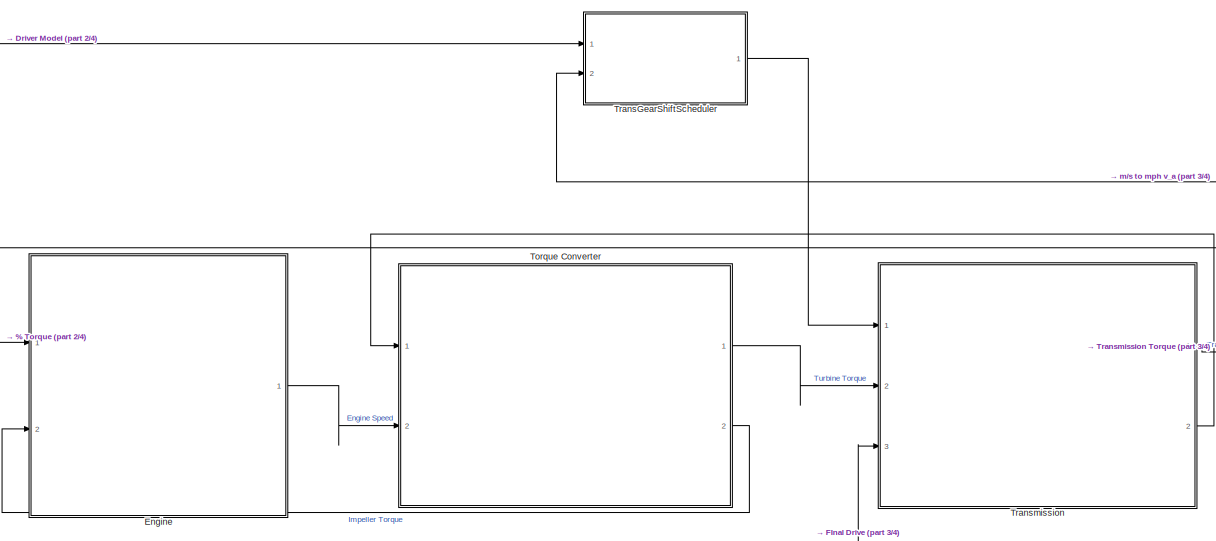
[diagram: root canvas - part 1/4, center side, full height]
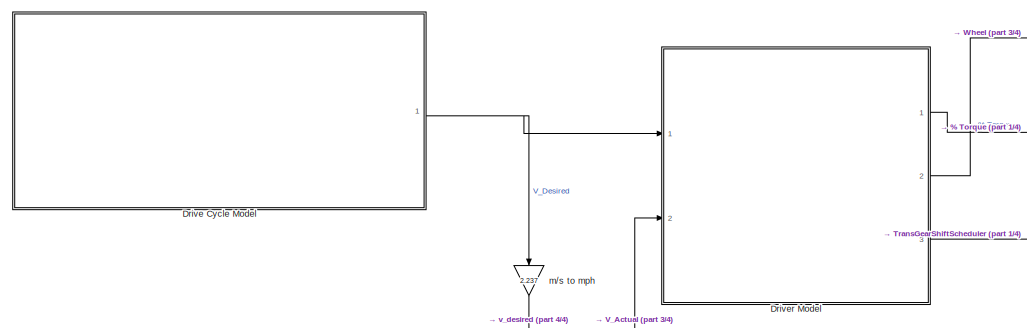
[diagram: root canvas - part 2/4, middle left region]
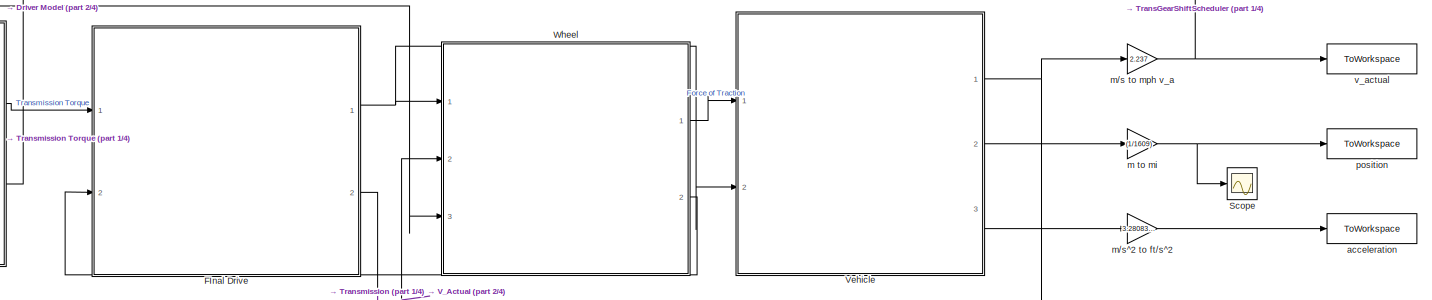
[diagram: root canvas - part 3/4, middle right region]
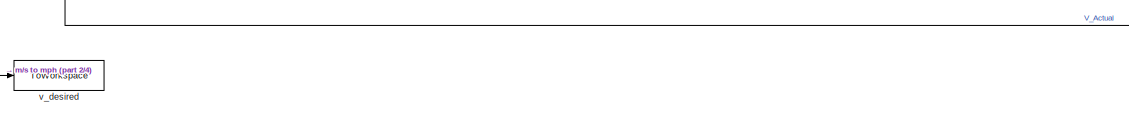
[diagram: root canvas - part 4/4, bottom left region]
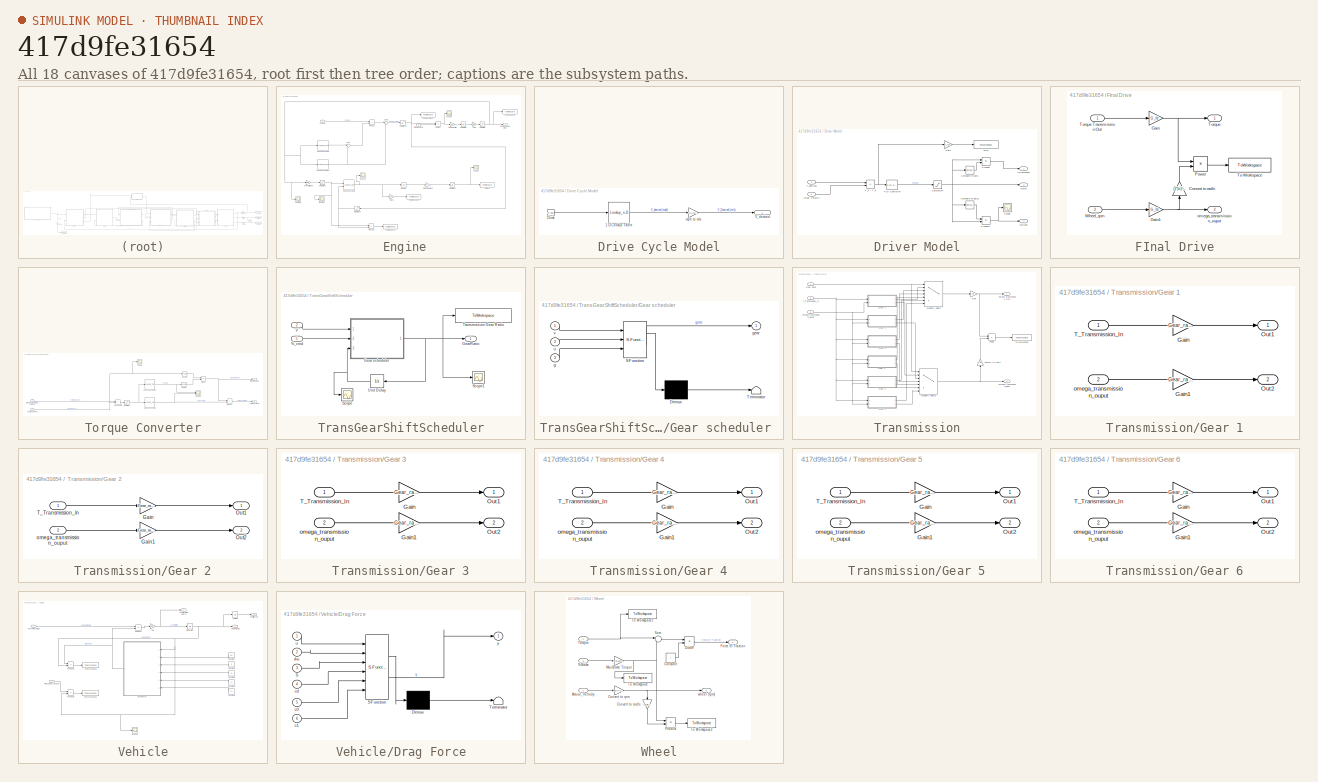
[diagram: thumbnail index - all 18 canvases of the model, root first then tree order]
MODEL slx_417d9fe31654
KIND model
CONFIG AbsTol = auto
CONFIG EnableMultiTasking = off
CONFIG FixedStep = auto
CONFIG MaxStep = auto
CONFIG MinStep = auto
CONFIG RelTol = auto
CONFIG SampleTimeConstraint = Unconstrained
CONFIG SolverName = VariableStepAuto
CONFIG StartTime = 0.0
CONFIG StopTime = 1370
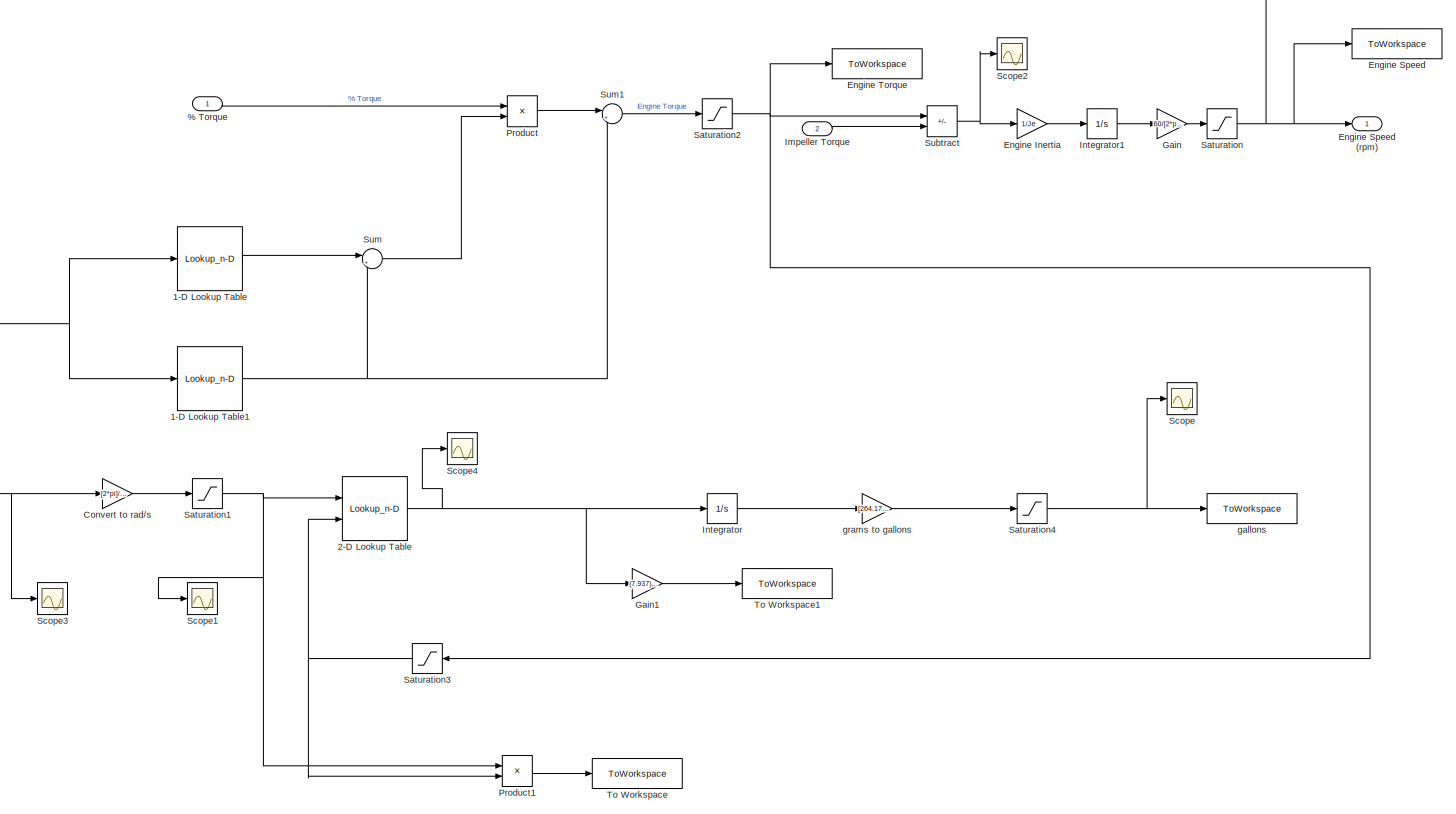
[diagram:  Engine - part 1/1, most of the canvas]
BLOCK [SubSystem]  Engine
  Ports = [2, 1]
  RequestExecContextInheritance = off
BLOCK [Inport]  Engine/% Torque
BLOCK [Lookup_n-D]  Engine/1-D Lookup Table
  BreakpointsForDimension1 = upper_rpm
  InputPortMap = u0
  InternalRulePriority = Speed
  NumberOfTableDimensions = 1
  Ports = [1, 1]
  RndMeth = Simplest
  Table = upper_torque
BLOCK [Lookup_n-D]  Engine/1-D Lookup Table1
  BreakpointsForDimension1 = lower_rpm
  InputPortMap = u0
  InternalRulePriority = Speed
  NumberOfTableDimensions = 1
  Ports = [1, 1]
  RndMeth = Simplest
  Table = lower_torque
BLOCK [Lookup_n-D]  Engine/2-D Lookup Table
  BreakpointsForDimension1 = input_speed
  BreakpointsForDimension2 = input_torques
  InputPortMap = u0,u1
  InternalRulePriority = Speed
  Ports = [2, 1]
  RndMeth = Simplest
  Table = [fuelmap]
BLOCK [Gain]  Engine/Convert to rad//s
  Gain = [2*pi]/60
BLOCK [Gain]  Engine/Engine Inertia
  Gain = 1/Je
BLOCK [ToWorkspace]  Engine/Engine Speed
  FixptAsFi = on
  MaxDataPoints = inf
  Ports = [1]
  SampleTime = -1
  SaveFormat = Timeseries
  VariableName = engine_speed
BLOCK [Outport]  Engine/Engine Speed (rpm)
BLOCK [ToWorkspace]  Engine/Engine Torque
  FixptAsFi = on
  MaxDataPoints = inf
  Ports = [1]
  SampleTime = -1
  SaveFormat = Timeseries
  VariableName = engine_torque
BLOCK [Gain]  Engine/Gain
  Gain = 60/[2*pi]
BLOCK [Gain]  Engine/Gain1
  Gain = (7.937)*7.44*746*0.93
BLOCK [Inport]  Engine/Impeller Torque
  Port = 2
BLOCK [Integrator]  Engine/Integrator
  Ports = [1, 1]
BLOCK [Integrator]  Engine/Integrator1
  InitialCondition = w_idle
  Ports = [1, 1]
BLOCK [Product]  Engine/Product
  Ports = [2, 1]
BLOCK [Product]  Engine/Product1
  Ports = [2, 1]
BLOCK [Saturate]  Engine/Saturation
  LowerLimit = w_idle
  UpperLimit = w_max
BLOCK [Saturate]  Engine/Saturation1
  LowerLimit = 0
  UpperLimit = 706.3
BLOCK [Saturate]  Engine/Saturation2
  LowerLimit = 0
  UpperLimit = mT
BLOCK [Saturate]  Engine/Saturation3
  LowerLimit = -49.3
  UpperLimit = 387.4
BLOCK [Saturate]  Engine/Saturation4
  LowerLimit = 0
  UpperLimit = 0.35
  ZeroCross = off
BLOCK [Scope]  Engine/Scope
  Floating = off
  NumInputPorts = 1
  Ports = [1]
  ScopeSpecificationString = Simulink.scopes.TimeScopeBlockCfg('CurrentConfiguration', extmgr.ConfigurationSet(extmgr.Configuration('Core','General UI',true),extmgr.Configuration('Core','Source UI',true),extmgr.Configuration('Sources','WiredSimulink',true,'DataLoggingVariableName','ScopeData1'),extmgr.Configuration('Visuals','Time Domain',true,'SerializedDisplays',{struct('MinYLimReal','-0.04375','MaxYLimReal','0.39375','YLab...<+1370ch>
BLOCK [Scope]  Engine/Scope1
  Floating = off
  NumInputPorts = 1
  Ports = [1]
  ScopeSpecificationString = Simulink.scopes.TimeScopeBlockCfg('CurrentConfiguration', extmgr.ConfigurationSet(extmgr.Configuration('Core','General UI',true),extmgr.Configuration('Core','Source UI',true),extmgr.Configuration('Sources','WiredSimulink',true,'DataLoggingVariableName','ScopeData5'),extmgr.Configuration('Visuals','Time Domain',true,'SerializedDisplays',{struct('MinYLimReal','1.0472','MaxYLimReal','744.55746','YLab...<+1372ch>
BLOCK [Scope]  Engine/Scope2
  Floating = off
  NumInputPorts = 1
  Ports = [1]
  ScopeSpecificationString = Simulink.scopes.TimeScopeBlockCfg('CurrentConfiguration', extmgr.ConfigurationSet(extmgr.Configuration('Core','General UI',true),extmgr.Configuration('Core','Source UI',true),extmgr.Configuration('Sources','WiredSimulink',true,'DataLoggingVariableName','ScopeData1'),extmgr.Configuration('Visuals','Time Domain',true,'SerializedDisplays',{struct('MinYLimReal','-2610.06599','MaxYLimReal','568.90058',...<+1387ch>
BLOCK [Scope]  Engine/Scope3
  Floating = off
  NumInputPorts = 1
  Ports = [1]
  ScopeSpecificationString = Simulink.scopes.TimeScopeBlockCfg('CurrentConfiguration', extmgr.ConfigurationSet(extmgr.Configuration('Core','General UI',true),extmgr.Configuration('Core','Source UI',true),extmgr.Configuration('Sources','WiredSimulink',true,'DataLoggingVariableName','ScopeData6'),extmgr.Configuration('Visuals','Time Domain',true,'SerializedDisplays',{struct('MinYLimReal','5400.00000','MaxYLimReal','7400.00000',...<+1391ch>
BLOCK [Scope]  Engine/Scope4
  Floating = off
  NumInputPorts = 1
  Ports = [1]
  ScopeSpecificationString = Simulink.scopes.TimeScopeBlockCfg('CurrentConfiguration', extmgr.ConfigurationSet(extmgr.Configuration('Core','General UI',true),extmgr.Configuration('Core','Source UI',true),extmgr.Configuration('Sources','WiredSimulink',true,'DataLoggingVariableName','ScopeData3'),extmgr.Configuration('Visuals','Time Domain',true,'SerializedDisplays',{struct('MinYLimReal','-5.69378','MaxYLimReal','52.24663','YLa...<+1379ch>
BLOCK [Sum]  Engine/Subtract
  IconShape = rectangular
  Inputs = +-
  Ports = [2, 1]
BLOCK [Sum]  Engine/Sum
  Inputs = |+-
  Ports = [2, 1]
BLOCK [Sum]  Engine/Sum1
  Inputs = |++
  Ports = [2, 1]
BLOCK [ToWorkspace]  Engine/To Workspace
  FixptAsFi = on
  MaxDataPoints = inf
  Ports = [1]
  SampleTime = -1
  SaveFormat = Timeseries
  VariableName = engine_power
BLOCK [ToWorkspace]  Engine/To Workspace1
  FixptAsFi = on
  MaxDataPoints = inf
  Ports = [1]
  SampleTime = -1
  SaveFormat = Timeseries
  VariableName = fuel_power
BLOCK [ToWorkspace]  Engine/gallons
  FixptAsFi = on
  MaxDataPoints = inf
  Ports = [1]
  SampleTime = -1
  SaveFormat = Timeseries
  VariableName = gallons
BLOCK [Gain]  Engine/grams to gallons
  Gain = [264.172]/[105000]
BLOCK [SubSystem] Drive Cycle Model
  Ports = [0, 1]
  RequestExecContextInheritance = off
BLOCK [Lookup_n-D] Drive Cycle Model/1-D Lookup Table
  BreakpointsForDimension1 = time
  InputPortMap = u0
  InternalRulePriority = Speed
  NumberOfTableDimensions = 1
  Ports = [1, 1]
  RndMeth = Simplest
  Table = vel
BLOCK [Clock] Drive Cycle Model/Clock
BLOCK [Outport] Drive Cycle Model/V_desired
BLOCK [Gain] Drive Cycle Model/mph to m//s
  Gain = (1/2.237)
BLOCK [SubSystem] Driver Model
  Ports = [2, 3]
  RequestExecContextInheritance = off
BLOCK [Outport] Driver Model/%Brake
  Port = 2
BLOCK [Outport] Driver Model/%Command
BLOCK [Outport] Driver Model/%cmd
  Port = 3
BLOCK [Inport] Driver Model/Actual Velocity
  Port = 2
BLOCK [Reference] Driver Model/Compare To Zero  REF=simulink/Logic and Bit
Operations/Compare
To Zero
  Ports = [1, 1]
  SourceBlock = simulink/Logic and Bit\nOperations/Compare\nTo Zero
  SourceProductBaseCode = SL
  SourceType = Compare To Zero
BLOCK [Reference] Driver Model/Compare To Zero1  REF=simulink/Logic and Bit
Operations/Compare
To Zero
  Ports = [1, 1]
  SourceBlock = simulink/Logic and Bit\nOperations/Compare\nTo Zero
  SourceProductBaseCode = SL
  SourceType = Compare To Zero
BLOCK [Gain] Driver Model/Gain
  Gain = 2.237
BLOCK [Reference] Driver Model/PID Controller  REF=slpidlib/PID Controller
  Ports = [1, 1]
  SourceBlock = slpidlib/PID Controller
  SourceProductBaseCode = SL
  SourceType = PID 1dof
BLOCK [Product] Driver Model/Product
  Ports = [2, 1]
BLOCK [Product] Driver Model/Product1
  Ports = [2, 1]
BLOCK [Saturate] Driver Model/Saturation
  LowerLimit = -1
  UpperLimit = 1
BLOCK [Scope] Driver Model/Scope
  Floating = off
  NumInputPorts = 1
  Ports = [1]
  ScopeSpecificationString = Simulink.scopes.TimeScopeBlockCfg('CurrentConfiguration', extmgr.ConfigurationSet(extmgr.Configuration('Core','General UI',true),extmgr.Configuration('Core','Source UI',true),extmgr.Configuration('Sources','WiredSimulink',true,'DataLoggingVariableName','ScopeData3'),extmgr.Configuration('Visuals','Time Domain',true,'SerializedDisplays',{struct('MinYLimReal','-0.00011','MaxYLimReal','-0.00009','YLa...<+1371ch>
BLOCK [Sum] Driver Model/V_d - V_a
  IconShape = rectangular
  Inputs = +-
  Ports = [2, 1]
BLOCK [Inport] Driver Model/V_desired
BLOCK [ToWorkspace] Driver Model/error
  FixptAsFi = on
  MaxDataPoints = inf
  Ports = [1]
  SampleTime = -1
  SaveFormat = Timeseries
  VariableName = error
BLOCK [SubSystem] FInal Drive
  Ports = [2, 2]
  RequestExecContextInheritance = off
BLOCK [Gain] FInal Drive/Convert to rad//s
  Gain = [2*pi]/60
  NameLocation = right
BLOCK [Gain] FInal Drive/Gain
  Gain = G_fd
BLOCK [Gain] FInal Drive/Gain1
  Gain = G_fd
BLOCK [Product] FInal Drive/Power
  Ports = [2, 1]
BLOCK [ToWorkspace] FInal Drive/To Workspace
  FixptAsFi = on
  MaxDataPoints = inf
  Ports = [1]
  SampleTime = -1
  SaveFormat = Timeseries
  VariableName = final_drive_power
BLOCK [Outport] FInal Drive/Torque
BLOCK [Inport] FInal Drive/Torque Transmission Out
BLOCK [Inport] FInal Drive/Wheel_rpm
  Port = 2
BLOCK [Outport] FInal Drive/omega_transmission_ouput
  Port = 2
BLOCK [Scope] Scope
  Floating = off
  NumInputPorts = 1
  Ports = [1]
  ScopeSpecificationString = Simulink.scopes.TimeScopeBlockCfg('CurrentConfiguration', extmgr.ConfigurationSet(extmgr.Configuration('Core','General UI',true),extmgr.Configuration('Core','Source UI',true),extmgr.Configuration('Sources','WiredSimulink',true,'DataLoggingVariableName','ScopeData2'),extmgr.Configuration('Visuals','Time Domain',true,'SerializedDisplays',{struct('MinYLimReal','-0.93045','MaxYLimReal','8.37409','YLab...<+1366ch>
BLOCK [SubSystem] Torque Converter
  Ports = [2, 2]
  RequestExecContextInheritance = off
BLOCK [Lookup_n-D] Torque Converter/1-D Lookup Table
  BreakpointsForDimension1 = sr
  InputPortMap = u0
  InternalRulePriority = Speed
  NumberOfTableDimensions = 1
  Ports = [1, 1]
  RndMeth = Simplest
  Table = tr
BLOCK [Lookup_n-D] Torque Converter/1-D Lookup Table1
  BreakpointsForDimension1 = sr
  InputPortMap = u0
  InternalRulePriority = Speed
  NumberOfTableDimensions = 1
  Ports = [1, 1]
  RndMeth = Simplest
  Table = kfactor
BLOCK [Product] Torque Converter/Divide
  Inputs = */
  Ports = [2, 1]
BLOCK [Inport] Torque Converter/Engine Speed
  Port = 2
BLOCK [Outport] Torque Converter/Impeller Torque
  Port = 2
BLOCK [Inport] Torque Converter/Omega Transmission Input
BLOCK [Product] Torque Converter/Product
  Ports = [2, 1]
BLOCK [Saturate] Torque Converter/Saturation2
  LowerLimit = 0
  UpperLimit = 1
BLOCK [Scope] Torque Converter/Scope
  Floating = off
  NumInputPorts = 1
  Ports = [1]
  ScopeSpecificationString = Simulink.scopes.TimeScopeBlockCfg('CurrentConfiguration', extmgr.ConfigurationSet(extmgr.Configuration('Core','General UI',true),extmgr.Configuration('Core','Source UI',true),extmgr.Configuration('Sources','WiredSimulink',true,'DataLoggingVariableName','ScopeData1'),extmgr.Configuration('Visuals','Time Domain',true,'SerializedDisplays',{struct('MinYLimReal','5400.00000','MaxYLimReal','7400.00000',...<+1395ch>
BLOCK [Scope] Torque Converter/Scope1
  Floating = off
  NumInputPorts = 2
  Ports = [2]
  ScopeSpecificationString = Simulink.scopes.TimeScopeBlockCfg('CurrentConfiguration', extmgr.ConfigurationSet(extmgr.Configuration('Core','General UI',true),extmgr.Configuration('Core','Source UI',true),extmgr.Configuration('Sources','WiredSimulink',true,'DataLoggingVariableName','ScopeData2'),extmgr.Configuration('Visuals','Time Domain',true,'SerializedDisplays',{struct('MinYLimReal','-61.375','MaxYLimReal','562.375','YLabe...<+1378ch>
BLOCK [Product] Torque Converter/Speed Ratio
  Inputs = */
  Ports = [2, 1]
BLOCK [Math] Torque Converter/Square
  Operator = square
  Ports = [1, 1]
BLOCK [Math] Torque Converter/Square1
  Operator = square
  Ports = [1, 1]
BLOCK [Outport] Torque Converter/Turbine Torque
BLOCK [SubSystem] TransGearShiftScheduler
  Ports = [2, 1]
  RequestExecContextInheritance = off
BLOCK [Inport] TransGearShiftScheduler/%_cmd 
BLOCK [SubSystem] TransGearShiftScheduler/Gear scheduler 
  ErrorFcn = Stateflow.Translate.translate
  PermitHierarchicalResolution = ExplicitOnly
  Ports = [3, 1]
  RequestExecContextInheritance = off
  SFBlockType = MATLAB Function
  TreatAsAtomicUnit = on
BLOCK [Demux] TransGearShiftScheduler/Gear scheduler / Demux 
  Outputs = 1
  Ports = [1, 1]
BLOCK [S-Function] TransGearShiftScheduler/Gear scheduler / SFunction 
  EnableBusSupport = on
  FunctionName = sf_sfun
  PortCounts = [3 2]
  Ports = [3, 2]
  SFcnIsStateOwnerBlock = off
  SFunctionDeploymentMode = off
  Tag = Stateflow S-Function 3
BLOCK [Terminator] TransGearShiftScheduler/Gear scheduler / Terminator 
BLOCK [Inport] TransGearShiftScheduler/Gear scheduler /g
  Port = 3
BLOCK [Outport] TransGearShiftScheduler/Gear scheduler /gear
BLOCK [Inport] TransGearShiftScheduler/Gear scheduler /u
  Port = 2
BLOCK [Inport] TransGearShiftScheduler/Gear scheduler /v
BLOCK [Outport] TransGearShiftScheduler/GearRatio
BLOCK [Scope] TransGearShiftScheduler/Scope
  Floating = off
  NumInputPorts = 1
  Ports = [1]
  ScopeSpecificationString = Simulink.scopes.TimeScopeBlockCfg('CurrentConfiguration', extmgr.ConfigurationSet(extmgr.Configuration('Core','General UI',true),extmgr.Configuration('Core','Source UI',true),extmgr.Configuration('Sources','WiredSimulink',true,'DataLoggingVariableName','ScopeData2'),extmgr.Configuration('Visuals','Time Domain',true,'SerializedDisplays',{struct('MinYLimReal','0.9','MaxYLimReal','1.1','YLabelReal','...<+1335ch>
BLOCK [Scope] TransGearShiftScheduler/Scope1
  Floating = off
  NumInputPorts = 1
  Ports = [1]
  ScopeSpecificationString = Simulink.scopes.TimeScopeBlockCfg('CurrentConfiguration', extmgr.ConfigurationSet(extmgr.Configuration('Core','General UI',true),extmgr.Configuration('Core','Source UI',true),extmgr.Configuration('Sources','WiredSimulink',true,'DataLoggingVariableName','ScopeData4'),extmgr.Configuration('Visuals','Time Domain',true,'SerializedDisplays',{struct('MinYLimReal','0.75259','MaxYLimReal','6.18987','YLabe...<+1420ch>
BLOCK [ToWorkspace] TransGearShiftScheduler/Transmission Gear Ratio
  FixptAsFi = on
  MaxDataPoints = inf
  Ports = [1]
  SampleTime = -1
  SaveFormat = Timeseries
  VariableName = transmission_gear_ratio
BLOCK [UnitDelay] TransGearShiftScheduler/Unit Delay
  HasFrameUpgradeWarning = on
  InitialCondition = 1
  SampleTime = -1
BLOCK [Inport] TransGearShiftScheduler/V
  Port = 2
BLOCK [SubSystem] Transmission
  Ports = [3, 2]
  RequestExecContextInheritance = off
BLOCK [Gain] Transmission/Convert to rad//s
  Gain = [2*pi]/60
  NameLocation = right
BLOCK [Gain] Transmission/Gain
  Gain = eff
BLOCK [SubSystem] Transmission/Gear 1
  Ports = [2, 2]
  RequestExecContextInheritance = off
BLOCK [Gain] Transmission/Gear 1/Gain
  Gain = Gear_ratio_1
BLOCK [Gain] Transmission/Gear 1/Gain1
  Gain = Gear_ratio_1
BLOCK [Outport] Transmission/Gear 1/Out1
BLOCK [Outport] Transmission/Gear 1/Out2
  Port = 2
BLOCK [Inport] Transmission/Gear 1/T_Transmission_In
BLOCK [Inport] Transmission/Gear 1/omega_transmission_ouput
  Port = 2
BLOCK [SubSystem] Transmission/Gear 2
  Ports = [2, 2]
  RequestExecContextInheritance = off
BLOCK [Gain] Transmission/Gear 2/Gain
  Gain = Gear_ratio_2
BLOCK [Gain] Transmission/Gear 2/Gain1
  Gain = Gear_ratio_2
BLOCK [Outport] Transmission/Gear 2/Out1
BLOCK [Outport] Transmission/Gear 2/Out2
  Port = 2
BLOCK [Inport] Transmission/Gear 2/T_Transmission_In
BLOCK [Inport] Transmission/Gear 2/omega_transmission_ouput
  Port = 2
BLOCK [SubSystem] Transmission/Gear 3
  Ports = [2, 2]
  RequestExecContextInheritance = off
BLOCK [Gain] Transmission/Gear 3/Gain
  Gain = Gear_ratio_3
BLOCK [Gain] Transmission/Gear 3/Gain1
  Gain = Gear_ratio_3
BLOCK [Outport] Transmission/Gear 3/Out1
BLOCK [Outport] Transmission/Gear 3/Out2
  Port = 2
BLOCK [Inport] Transmission/Gear 3/T_Transmission_In
BLOCK [Inport] Transmission/Gear 3/omega_transmission_ouput
  Port = 2
BLOCK [SubSystem] Transmission/Gear 4
  Ports = [2, 2]
  RequestExecContextInheritance = off
BLOCK [Gain] Transmission/Gear 4/Gain
  Gain = Gear_ratio_4
BLOCK [Gain] Transmission/Gear 4/Gain1
  Gain = Gear_ratio_4
BLOCK [Outport] Transmission/Gear 4/Out1
BLOCK [Outport] Transmission/Gear 4/Out2
  Port = 2
BLOCK [Inport] Transmission/Gear 4/T_Transmission_In
BLOCK [Inport] Transmission/Gear 4/omega_transmission_ouput
  Port = 2
BLOCK [SubSystem] Transmission/Gear 5
  Ports = [2, 2]
  RequestExecContextInheritance = off
BLOCK [Gain] Transmission/Gear 5/Gain
  Gain = Gear_ratio_5
BLOCK [Gain] Transmission/Gear 5/Gain1
  Gain = Gear_ratio_5
BLOCK [Outport] Transmission/Gear 5/Out1
BLOCK [Outport] Transmission/Gear 5/Out2
  Port = 2
BLOCK [Inport] Transmission/Gear 5/T_Transmission_In
BLOCK [Inport] Transmission/Gear 5/omega_transmission_ouput
  Port = 2
BLOCK [SubSystem] Transmission/Gear 6
  Ports = [2, 2]
  RequestExecContextInheritance = off
BLOCK [Gain] Transmission/Gear 6/Gain
  Gain = Gear_ratio_6
BLOCK [Gain] Transmission/Gear 6/Gain1
  Gain = Gear_ratio_6
BLOCK [Outport] Transmission/Gear 6/Out1
BLOCK [Outport] Transmission/Gear 6/Out2
  Port = 2
BLOCK [Inport] Transmission/Gear 6/T_Transmission_In
BLOCK [Inport] Transmission/Gear 6/omega_transmission_ouput
  Port = 2
BLOCK [Inport] Transmission/Gear Cond
BLOCK [MultiPortSwitch] Transmission/Multiport Switch
  DiagnosticForDefault = None
  InputSameDT = off
  Inputs = 6
  Ports = [7, 1]
  SaturateOnIntegerOverflow = off
BLOCK [MultiPortSwitch] Transmission/Multiport Switch1
  DiagnosticForDefault = None
  InputSameDT = off
  Inputs = 6
  Ports = [7, 1]
  SaturateOnIntegerOverflow = off
BLOCK [Product] Transmission/Power
  Ports = [2, 1]
BLOCK [Inport] Transmission/T_Transmission_In
  Port = 2
BLOCK [ToWorkspace] Transmission/To Workspace
  FixptAsFi = on
  MaxDataPoints = inf
  Ports = [1]
  SampleTime = -1
  SaveFormat = Timeseries
  VariableName = transmission_output_power
BLOCK [Outport] Transmission/Torque Transmission Out
BLOCK [Outport] Transmission/omega_transmission_input
  Port = 2
BLOCK [Inport] Transmission/omega_transmission_ouput
  Port = 3
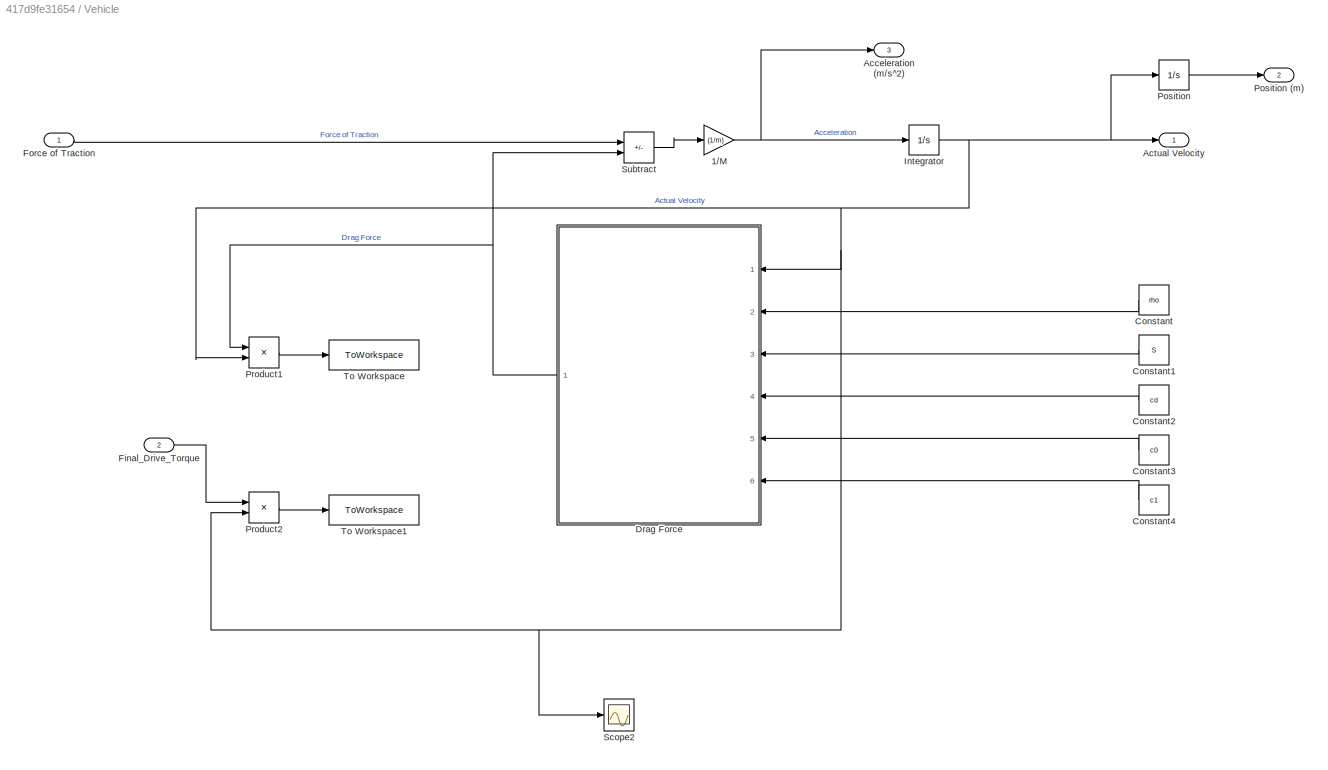
BLOCK [SubSystem] Vehicle
  Ports = [2, 3]
  RequestExecContextInheritance = off
BLOCK [Gain] Vehicle/1//M
  Gain = (1/m)
BLOCK [Outport] Vehicle/Acceleration (m//s^2)
  Port = 3
BLOCK [Outport] Vehicle/Actual Velocity
BLOCK [Constant] Vehicle/Constant
  Value = rho
BLOCK [Constant] Vehicle/Constant1
  Value = S
BLOCK [Constant] Vehicle/Constant2
  Value = cd
BLOCK [Constant] Vehicle/Constant3
  Value = c0
BLOCK [Constant] Vehicle/Constant4
  Value = c1
BLOCK [SubSystem] Vehicle/Drag Force
  ErrorFcn = Stateflow.Translate.translate
  PermitHierarchicalResolution = ExplicitOnly
  Ports = [6, 1]
  RequestExecContextInheritance = off
  SFBlockType = MATLAB Function
  TreatAsAtomicUnit = on
BLOCK [Demux] Vehicle/Drag Force/ Demux 
  Outputs = 1
  Ports = [1, 1]
BLOCK [S-Function] Vehicle/Drag Force/ SFunction 
  EnableBusSupport = on
  FunctionName = sf_sfun
  PortCounts = [6 2]
  Ports = [6, 2]
  SFcnIsStateOwnerBlock = off
  SFunctionDeploymentMode = off
  Tag = Stateflow S-Function 2
BLOCK [Terminator] Vehicle/Drag Force/ Terminator 
BLOCK [Inport] Vehicle/Drag Force/S
  Port = 3
BLOCK [Inport] Vehicle/Drag Force/c0
  Port = 5
BLOCK [Inport] Vehicle/Drag Force/c1
  Port = 6
BLOCK [Inport] Vehicle/Drag Force/cd
  Port = 4
BLOCK [Inport] Vehicle/Drag Force/rho
  Port = 2
BLOCK [Inport] Vehicle/Drag Force/u
BLOCK [Outport] Vehicle/Drag Force/y
BLOCK [Inport] Vehicle/Final_Drive_Torque
  Port = 2
BLOCK [Inport] Vehicle/Force of Traction
BLOCK [Integrator] Vehicle/Integrator
  InitialCondition = 0.0001
  Ports = [1, 1]
BLOCK [Integrator] Vehicle/Position
  Ports = [1, 1]
BLOCK [Outport] Vehicle/Position (m)
  Port = 2
BLOCK [Product] Vehicle/Product1
  Ports = [2, 1]
BLOCK [Product] Vehicle/Product2
  Ports = [2, 1]
BLOCK [Scope] Vehicle/Scope2
  Floating = off
  NumInputPorts = 1
  Ports = [1]
  ScopeSpecificationString = Simulink.scopes.TimeScopeBlockCfg('CurrentConfiguration', extmgr.ConfigurationSet(extmgr.Configuration('Core','General UI',true),extmgr.Configuration('Core','Source UI',true),extmgr.Configuration('Sources','WiredSimulink',true,'DataLoggingVariableName','ScopeData6'),extmgr.Configuration('Visuals','Time Domain',true,'SerializedDisplays',{struct('MinYLimReal','-3.34997','MaxYLimReal','30.1507','YLab...<+1374ch>
BLOCK [Sum] Vehicle/Subtract
  IconShape = rectangular
  Inputs = +-
  Ports = [2, 1]
BLOCK [ToWorkspace] Vehicle/To Workspace
  FixptAsFi = on
  MaxDataPoints = inf
  Ports = [1]
  SampleTime = -1
  SaveFormat = Timeseries
  VariableName = drag_loss_power
BLOCK [ToWorkspace] Vehicle/To Workspace1
  FixptAsFi = on
  MaxDataPoints = inf
  Ports = [1]
  SampleTime = -1
  SaveFormat = Timeseries
  VariableName = vehicle_kinetic_power
BLOCK [SubSystem] Wheel
  Ports = [3, 2]
  RequestExecContextInheritance = off
BLOCK [Inport] Wheel/%Brake
  Port = 3
BLOCK [Inport] Wheel/Actual_Velocity
  Port = 2
BLOCK [Constant] Wheel/Constant
  Value = r
BLOCK [Gain] Wheel/Convert to rad//s
  Gain = [2*pi]/60
  NameLocation = left
BLOCK [Gain] Wheel/Convert to rpm
  Gain = 60/[r*2*pi]
BLOCK [Product] Wheel/Divide
  Inputs = */
  Ports = [2, 1]
BLOCK [Outport] Wheel/Force of Traction
BLOCK [Gain] Wheel/Max Brake Torque
  Gain = max_break_torque
BLOCK [Product] Wheel/Product
  Ports = [2, 1]
BLOCK [Sum] Wheel/Sum
  Inputs = |++
  Ports = [2, 1]
BLOCK [ToWorkspace] Wheel/To Workspace
  FixptAsFi = on
  MaxDataPoints = inf
  Ports = [1]
  SampleTime = -1
  SaveFormat = Timeseries
  VariableName = brake_torque
BLOCK [ToWorkspace] Wheel/To Workspace1
  FixptAsFi = on
  MaxDataPoints = inf
  Ports = [1]
  SampleTime = -1
  SaveFormat = Timeseries
  VariableName = final_drive_torque
BLOCK [ToWorkspace] Wheel/To Workspace2
  FixptAsFi = on
  MaxDataPoints = inf
  Ports = [1]
  SampleTime = -1
  SaveFormat = Timeseries
  VariableName = brake_power
BLOCK [Inport] Wheel/Torque
BLOCK [Outport] Wheel/wheel (rpm)
  Port = 2
BLOCK [ToWorkspace] acceleration
  FixptAsFi = on
  MaxDataPoints = inf
  Ports = [1]
  SampleTime = -1
  SaveFormat = Timeseries
  VariableName = acceleration
BLOCK [Gain] m to mi
  Gain = (1/1609)
BLOCK [Gain] m//s to mph
  Gain = 2.237
  NameLocation = left
BLOCK [Gain] m//s to mph v_a
  Gain = 2.237
BLOCK [Gain] m//s^2 to ft//s^2
  Gain = 3.2808399
BLOCK [ToWorkspace] position
  FixptAsFi = on
  MaxDataPoints = inf
  Ports = [1]
  SampleTime = -1
  SaveFormat = Timeseries
  VariableName = position
BLOCK [ToWorkspace] v_actual
  FixptAsFi = on
  MaxDataPoints = inf
  Ports = [1]
  SampleTime = -1
  SaveFormat = Timeseries
  VariableName = v_actual
BLOCK [ToWorkspace] v_desired
  FixptAsFi = on
  MaxDataPoints = inf
  Ports = [1]
  SampleTime = -1
  SaveFormat = Timeseries
  VariableName = v_desired
LINE  Engine/% Torque:1 ->  Engine/Product:1
NET  Engine/1-D Lookup Table1:1 ->  Engine/Sum1:2,  Engine/Sum:2
LINE  Engine/1-D Lookup Table:1 ->  Engine/Sum:1
NET  Engine/2-D Lookup Table:1 ->  Engine/Gain1:1,  Engine/Integrator:1,  Engine/Scope4:1
LINE  Engine/Convert to rad//s:1 ->  Engine/Saturation1:1
LINE  Engine/Engine Inertia:1 ->  Engine/Integrator1:1
LINE  Engine/Gain1:1 ->  Engine/To Workspace1:1
LINE  Engine/Gain:1 ->  Engine/Saturation:1
LINE  Engine/Impeller Torque:1 ->  Engine/Subtract:2
LINE  Engine/Integrator1:1 ->  Engine/Gain:1
LINE  Engine/Integrator:1 ->  Engine/grams to gallons:1
LINE  Engine/Product1:1 ->  Engine/To Workspace:1
LINE  Engine/Product:1 ->  Engine/Sum1:1
NET  Engine/Saturation1:1 ->  Engine/2-D Lookup Table:1,  Engine/Product1:1,  Engine/Scope1:1
NET  Engine/Saturation2:1 ->  Engine/Engine Torque:1,  Engine/Saturation3:1,  Engine/Subtract:1
NET  Engine/Saturation3:1 ->  Engine/2-D Lookup Table:2,  Engine/Product1:2
NET  Engine/Saturation4:1 ->  Engine/Scope:1,  Engine/gallons:1
NET  Engine/Saturation:1 ->  Engine/1-D Lookup Table1:1,  Engine/1-D Lookup Table:1,  Engine/Convert to rad//s:1,  Engine/Engine Speed (rpm):1,  Engine/Engine Speed:1,  Engine/Scope3:1
NET  Engine/Subtract:1 ->  Engine/Engine Inertia:1,  Engine/Scope2:1
LINE  Engine/Sum1:1 ->  Engine/Saturation2:1
LINE  Engine/Sum:1 ->  Engine/Product:2
LINE  Engine/grams to gallons:1 ->  Engine/Saturation4:1
LINE  Engine:1 -> Torque Converter:2
LINE Drive Cycle Model/1-D Lookup Table:1 -> Drive Cycle Model/mph to m//s:1
LINE Drive Cycle Model/Clock:1 -> Drive Cycle Model/1-D Lookup Table:1
LINE Drive Cycle Model/mph to m//s:1 -> Drive Cycle Model/V_desired:1
NET Drive Cycle Model:1 -> Driver Model:1, m//s to mph:1
LINE Driver Model/Actual Velocity:1 -> Driver Model/V_d - V_a:2
LINE Driver Model/Compare To Zero1:1 -> Driver Model/Product1:1
LINE Driver Model/Compare To Zero:1 -> Driver Model/Product:2
LINE Driver Model/Gain:1 -> Driver Model/error:1
LINE Driver Model/PID Controller:1 -> Driver Model/Saturation:1
NET Driver Model/Product1:1 -> Driver Model/%Brake:1, Driver Model/Scope:1
LINE Driver Model/Product:1 -> Driver Model/%Command:1
NET Driver Model/Saturation:1 -> Driver Model/%cmd:1, Driver Model/Compare To Zero1:1, Driver Model/Compare To Zero:1, Driver Model/Product1:2, Driver Model/Product:1
NET Driver Model/V_d - V_a:1 -> Driver Model/Gain:1, Driver Model/PID Controller:1
LINE Driver Model/V_desired:1 -> Driver Model/V_d - V_a:1
LINE Driver Model:1 ->  Engine:1
LINE Driver Model:2 -> Wheel:3
LINE Driver Model:3 -> TransGearShiftScheduler:1
LINE FInal Drive/Convert to rad//s:1 -> FInal Drive/Power:2
NET FInal Drive/Gain1:1 -> FInal Drive/Convert to rad//s:1, FInal Drive/omega_transmission_ouput:1
NET FInal Drive/Gain:1 -> FInal Drive/Power:1, FInal Drive/Torque:1
LINE FInal Drive/Power:1 -> FInal Drive/To Workspace:1
LINE FInal Drive/Torque Transmission Out:1 -> FInal Drive/Gain:1
LINE FInal Drive/Wheel_rpm:1 -> FInal Drive/Gain1:1
NET FInal Drive:1 -> Vehicle:2, Wheel:1
LINE FInal Drive:2 -> Transmission:3
NET Torque Converter/1-D Lookup Table1:1 -> Torque Converter/Scope1:1, Torque Converter/Square:1
NET Torque Converter/1-D Lookup Table:1 -> Torque Converter/Product:2, Torque Converter/Scope1:2
NET Torque Converter/Divide:1 -> Torque Converter/Impeller Torque:1, Torque Converter/Product:1
NET Torque Converter/Engine Speed:1 -> Torque Converter/Scope:1, Torque Converter/Speed Ratio:2, Torque Converter/Square1:1
LINE Torque Converter/Omega Transmission Input:1 -> Torque Converter/Speed Ratio:1
LINE Torque Converter/Product:1 -> Torque Converter/Turbine Torque:1
NET Torque Converter/Saturation2:1 -> Torque Converter/1-D Lookup Table1:1, Torque Converter/1-D Lookup Table:1
LINE Torque Converter/Speed Ratio:1 -> Torque Converter/Saturation2:1
LINE Torque Converter/Square1:1 -> Torque Converter/Divide:1
LINE Torque Converter/Square:1 -> Torque Converter/Divide:2
LINE Torque Converter:1 -> Transmission:2
LINE Torque Converter:2 ->  Engine:2
LINE TransGearShiftScheduler/%_cmd :1 -> TransGearShiftScheduler/Gear scheduler :2
NET TransGearShiftScheduler/Gear scheduler :1 -> TransGearShiftScheduler/GearRatio:1, TransGearShiftScheduler/Scope1:1, TransGearShiftScheduler/Transmission Gear Ratio:1, TransGearShiftScheduler/Unit Delay:1
NET TransGearShiftScheduler/Unit Delay:1 -> TransGearShiftScheduler/Gear scheduler :3, TransGearShiftScheduler/Scope:1
LINE TransGearShiftScheduler/V:1 -> TransGearShiftScheduler/Gear scheduler :1
LINE TransGearShiftScheduler:1 -> Transmission:1
LINE Transmission/Convert to rad//s:1 -> Transmission/Power:2
NET Transmission/Gain:1 -> Transmission/Power:1, Transmission/Torque Transmission Out:1
LINE Transmission/Gear 1/Gain1:1 -> Transmission/Gear 1/Out2:1
LINE Transmission/Gear 1/Gain:1 -> Transmission/Gear 1/Out1:1
LINE Transmission/Gear 1/T_Transmission_In:1 -> Transmission/Gear 1/Gain:1
LINE Transmission/Gear 1/omega_transmission_ouput:1 -> Transmission/Gear 1/Gain1:1
LINE Transmission/Gear 1:1 -> Transmission/Multiport Switch:2
LINE Transmission/Gear 1:2 -> Transmission/Multiport Switch1:2
LINE Transmission/Gear 2/Gain1:1 -> Transmission/Gear 2/Out2:1
LINE Transmission/Gear 2/Gain:1 -> Transmission/Gear 2/Out1:1
LINE Transmission/Gear 2/T_Transmission_In:1 -> Transmission/Gear 2/Gain:1
LINE Transmission/Gear 2/omega_transmission_ouput:1 -> Transmission/Gear 2/Gain1:1
LINE Transmission/Gear 2:1 -> Transmission/Multiport Switch:3
LINE Transmission/Gear 2:2 -> Transmission/Multiport Switch1:3
LINE Transmission/Gear 3/Gain1:1 -> Transmission/Gear 3/Out2:1
LINE Transmission/Gear 3/Gain:1 -> Transmission/Gear 3/Out1:1
LINE Transmission/Gear 3/T_Transmission_In:1 -> Transmission/Gear 3/Gain:1
LINE Transmission/Gear 3/omega_transmission_ouput:1 -> Transmission/Gear 3/Gain1:1
LINE Transmission/Gear 3:1 -> Transmission/Multiport Switch:4
LINE Transmission/Gear 3:2 -> Transmission/Multiport Switch1:4
LINE Transmission/Gear 4/Gain1:1 -> Transmission/Gear 4/Out2:1
LINE Transmission/Gear 4/Gain:1 -> Transmission/Gear 4/Out1:1
LINE Transmission/Gear 4/T_Transmission_In:1 -> Transmission/Gear 4/Gain:1
LINE Transmission/Gear 4/omega_transmission_ouput:1 -> Transmission/Gear 4/Gain1:1
LINE Transmission/Gear 4:1 -> Transmission/Multiport Switch:5
LINE Transmission/Gear 4:2 -> Transmission/Multiport Switch1:5
LINE Transmission/Gear 5/Gain1:1 -> Transmission/Gear 5/Out2:1
LINE Transmission/Gear 5/Gain:1 -> Transmission/Gear 5/Out1:1
LINE Transmission/Gear 5/T_Transmission_In:1 -> Transmission/Gear 5/Gain:1
LINE Transmission/Gear 5/omega_transmission_ouput:1 -> Transmission/Gear 5/Gain1:1
LINE Transmission/Gear 5:1 -> Transmission/Multiport Switch:6
LINE Transmission/Gear 5:2 -> Transmission/Multiport Switch1:6
LINE Transmission/Gear 6/Gain1:1 -> Transmission/Gear 6/Out2:1
LINE Transmission/Gear 6/Gain:1 -> Transmission/Gear 6/Out1:1
LINE Transmission/Gear 6/T_Transmission_In:1 -> Transmission/Gear 6/Gain:1
LINE Transmission/Gear 6/omega_transmission_ouput:1 -> Transmission/Gear 6/Gain1:1
LINE Transmission/Gear 6:1 -> Transmission/Multiport Switch:7
LINE Transmission/Gear 6:2 -> Transmission/Multiport Switch1:7
NET Transmission/Gear Cond:1 -> Transmission/Multiport Switch1:1, Transmission/Multiport Switch:1
NET Transmission/Multiport Switch1:1 -> Transmission/Convert to rad//s:1, Transmission/omega_transmission_input:1
LINE Transmission/Multiport Switch:1 -> Transmission/Gain:1
LINE Transmission/Power:1 -> Transmission/To Workspace:1
NET Transmission/T_Transmission_In:1 -> Transmission/Gear 1:1, Transmission/Gear 2:1, Transmission/Gear 3:1, Transmission/Gear 4:1, Transmission/Gear 5:1, Transmission/Gear 6:1
NET Transmission/omega_transmission_ouput:1 -> Transmission/Gear 1:2, Transmission/Gear 2:2, Transmission/Gear 3:2, Transmission/Gear 4:2, Transmission/Gear 5:2, Transmission/Gear 6:2
LINE Transmission:1 -> FInal Drive:1
LINE Transmission:2 -> Torque Converter:1
NET Vehicle/1//M:1 -> Vehicle/Acceleration (m//s^2):1, Vehicle/Integrator:1
LINE Vehicle/Constant1:1 -> Vehicle/Drag Force:3
LINE Vehicle/Constant2:1 -> Vehicle/Drag Force:4
LINE Vehicle/Constant3:1 -> Vehicle/Drag Force:5
LINE Vehicle/Constant4:1 -> Vehicle/Drag Force:6
LINE Vehicle/Constant:1 -> Vehicle/Drag Force:2
NET Vehicle/Drag Force:1 -> Vehicle/Product1:1, Vehicle/Subtract:2
LINE Vehicle/Final_Drive_Torque:1 -> Vehicle/Product2:1
LINE Vehicle/Force of Traction:1 -> Vehicle/Subtract:1
NET Vehicle/Integrator:1 -> Vehicle/Actual Velocity:1, Vehicle/Drag Force:1, Vehicle/Position:1, Vehicle/Product1:2, Vehicle/Product2:2, Vehicle/Scope2:1
LINE Vehicle/Position:1 -> Vehicle/Position (m):1
LINE Vehicle/Product1:1 -> Vehicle/To Workspace:1
LINE Vehicle/Product2:1 -> Vehicle/To Workspace1:1
LINE Vehicle/Subtract:1 -> Vehicle/1//M:1
NET Vehicle:1 -> Driver Model:2, Wheel:2, m//s to mph v_a:1
LINE Vehicle:2 -> m to mi:1
LINE Vehicle:3 -> m//s^2 to ft//s^2:1
LINE Wheel/%Brake:1 -> Wheel/Max Brake Torque:1
LINE Wheel/Actual_Velocity:1 -> Wheel/Convert to rpm:1
LINE Wheel/Constant:1 -> Wheel/Divide:2
LINE Wheel/Convert to rad//s:1 -> Wheel/Product:2
NET Wheel/Convert to rpm:1 -> Wheel/Convert to rad//s:1, Wheel/wheel (rpm):1
LINE Wheel/Divide:1 -> Wheel/Force of Traction:1
NET Wheel/Max Brake Torque:1 -> Wheel/Product:1, Wheel/Sum:2, Wheel/To Workspace:1
LINE Wheel/Product:1 -> Wheel/To Workspace2:1
LINE Wheel/Sum:1 -> Wheel/Divide:1
NET Wheel/Torque:1 -> Wheel/Sum:1, Wheel/To Workspace1:1
LINE Wheel:1 -> Vehicle:1
LINE Wheel:2 -> FInal Drive:2
NET m to mi:1 -> Scope:1, position:1
NET m//s to mph v_a:1 -> TransGearShiftScheduler:2, v_actual:1
LINE m//s to mph:1 -> v_desired:1
LINE m//s^2 to ft//s^2:1 -> acceleration:1
note: NET lines group one-source signal fan-out (src -> all destinations, sorted); 1:1 wires keep LINE
CHART Vehicle/Drag Force states=1 transitions=1
  STATE_LABEL 'eML_blk_kernel()'
  STATE_LABEL 'SCRIPT:\nfunction y = fcn(u,rho,S,cd,c0,c1)\nc2 = 0.5*(rho)*(S)*(cd);\nfDrag = (c0 - c1*u - c2*(u)^2);\ny = fDrag;\n'
CHART TransGearShiftScheduler/Gear scheduler
 states=1 transitions=1
  STATE_LABEL 'eML_blk_kernel()'
  STATE_LABEL 'SCRIPT:\nfunction gear = fcn(v,u,g)\nif u>0\n    if (v<12.3*0.44704)\n        gear = 1;\n    elseif (v>=12.3*0.44704 && v<24.6*0.44704 && g==1)\n        gear = 2;\n    elseif (v>=24.6*0.44704 && v<35.79*0.44704 && g==2)\n        gear = 3;\n    elseif (v>=35.8*0.44704 && v<46.9*0.44704 && g==3)\n        gear = 4;\n    elseif (v>46.9*0.44704 && v<80*0.44704 && g==4)\n        gear = 5;\n    elseif (v>80*0.44704 &...<+516ch>'
CHART  states=0 transitions=0
CHART  states=0 transitions=0
